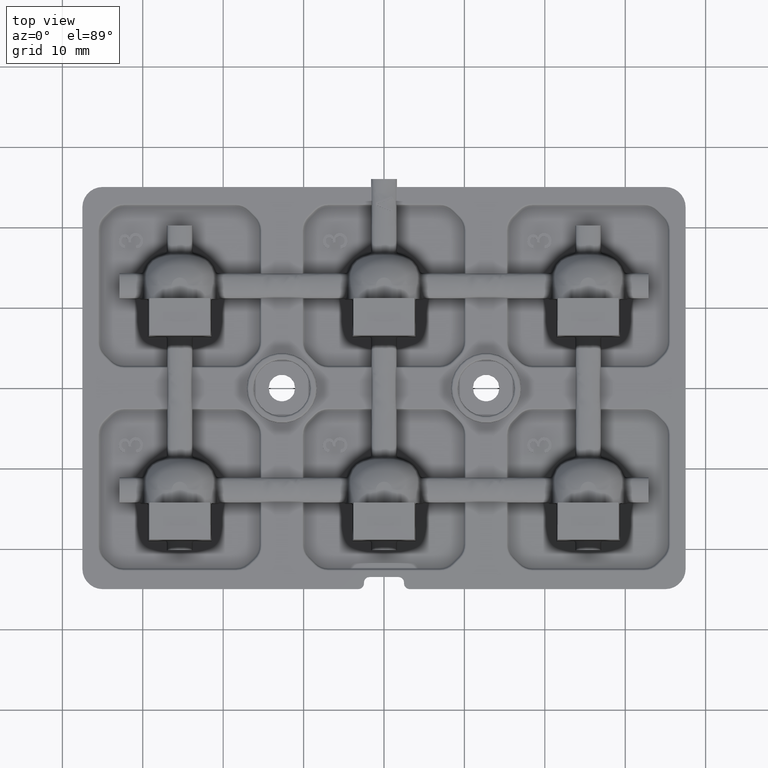
[diagram: clean part render]
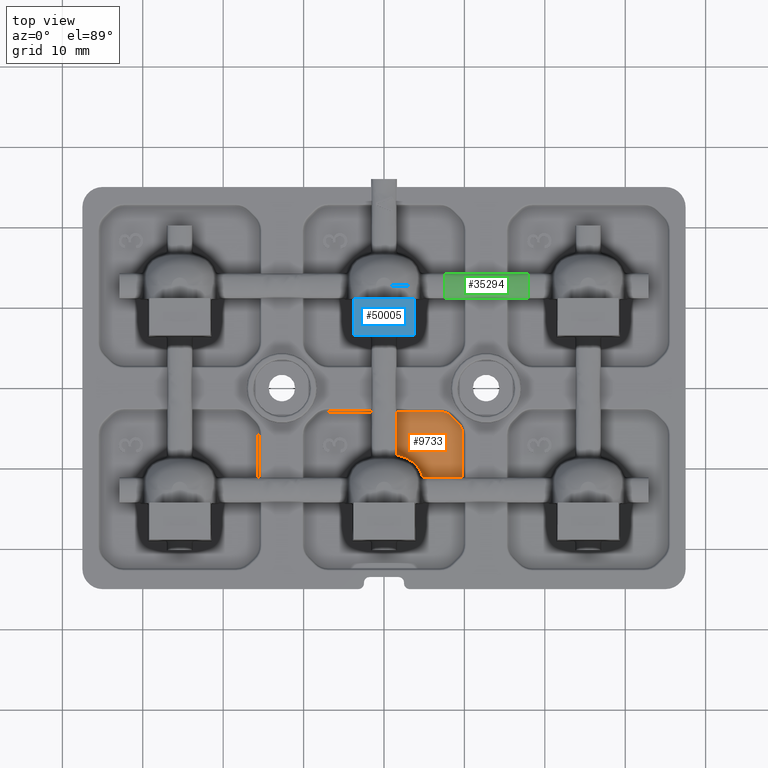
[diagram: same view with three faces highlighted in distinct colors, each labeled with its STEP entity id]
A machine part, top view with three faces highlighted in distinct colors.
Their STEP definitions:

[orange] entity #9733 — the highlighted planar face has unit normal (-0, 0, 1).
#418 = ORIENTED_EDGE ( 'NONE', *, *, #13431, .T. ) ;
#773 = CARTESIAN_POINT ( 'NONE',  ( 4.817144316120902700, -11.09501360376889200, 1.199999999999999700 ) ) ;
#3016 = DIRECTION ( 'NONE',  ( -0.0000000000000000000, 1.000000000000000000, -0.0000000000000000000 ) ) ;
#3584 = AXIS2_PLACEMENT_3D ( 'NONE', #42516, #46503, #22809 ) ;
#3706 = ORIENTED_EDGE ( 'NONE', *, *, #8891, .T. ) ;
#5447 = VERTEX_POINT ( 'NONE', #7114 ) ;
#5718 = DIRECTION ( 'NONE',  ( -0.7071067811865471300, 0.7071067811865479100, -0.0000000000000000000 ) ) ;
#6539 = AXIS2_PLACEMENT_3D ( 'NONE', #44380, #20689, #48365 ) ;
#6844 = PLANE ( 'NONE',  #3584 ) ;
#7046 = CARTESIAN_POINT ( 'NONE',  ( 8.389356138946475000, -3.507343002154405600, 1.200000000000000000 ) ) ;
#7114 = CARTESIAN_POINT ( 'NONE',  ( 9.790225092205679000, -5.753300858899104100, 1.200000000000000000 ) ) ;
#7181 = CARTESIAN_POINT ( 'NONE',  ( 1.971997462998333700, -8.407020573670386900, 1.199999999999999300 ) ) ;
#8561 = CARTESIAN_POINT ( 'NONE',  ( 2.328339350332937500, -8.513810175056194800, 1.199999999999993700 ) ) ;
#8891 = EDGE_CURVE ( 'NONE', #20057, #42970, #26353, .T. ) ;
#9538 = VECTOR ( 'NONE', #24849, 1000.000000000000000 ) ;
#9730 = ORIENTED_EDGE ( 'NONE', *, *, #18635, .T. ) ;
#9733 = ADVANCED_FACE ( 'NONE', ( #25062 ), #6844, .T. ) ;
#10731 = ORIENTED_EDGE ( 'NONE', *, *, #23779, .T. ) ;
#12435 = VECTOR ( 'NONE', #17568, 1000.000000000000000 ) ;
#12559 = CARTESIAN_POINT ( 'NONE',  ( 3.009983202670551500, -8.820547010681167400, 1.199999999999987700 ) ) ;
#13431 = EDGE_CURVE ( 'NONE', #19203, #20057, #41633, .T. ) ;
#13670 = LINE ( 'NONE', #37252, #12435 ) ;
#14990 = CARTESIAN_POINT ( 'NONE',  ( 1.604986396231102600, -500012.7000000001300, 1.199999999999999700 ) ) ;
#15922 = VERTEX_POINT ( 'NONE', #24440 ) ;
#16027 = EDGE_CURVE ( 'NONE', #5447, #19203, #22952, .T. ) ;
#16511 = B_SPLINE_CURVE_WITH_KNOTS ( 'NONE', 3,
 ( #35051, #7181, #8561, #36257, #12559, #40232, #16550, #44226, #20532, #48207, #24492, #773 ),
 .UNSPECIFIED., .F., .F.,
 ( 4, 2, 2, 2, 2, 4 ),
 ( 3.598827188588828000E-014, 0.001114931014532037900, 0.001672396521780062600, 0.002229862029028087200, 0.003344793043524133500, 0.004459724058020180700 ),
 .UNSPECIFIED. ) ;
#16550 = CARTESIAN_POINT ( 'NONE',  ( 3.483065159397762800, -9.116675377732239100, 1.200000000000000000 ) ) ;
#16670 = LINE ( 'NONE', #28129, #36466 ) ;
#17568 = DIRECTION ( 'NONE',  ( -1.000000000000000000, -1.376121659673310300E-016, 0.0000000000000000000 ) ) ;
#18246 = CARTESIAN_POINT ( 'NONE',  ( 7.749999999999998200, -5.753300858899102400, 1.200000000000000000 ) ) ;
#18635 = EDGE_CURVE ( 'NONE', #45499, #5447, #16670, .T. ) ;
#19203 = VERTEX_POINT ( 'NONE', #28604 ) ;
#19321 = VERTEX_POINT ( 'NONE', #29279 ) ;
#19376 = VECTOR ( 'NONE', #5718, 1000.000000000000000 ) ;
#19814 = AXIS2_PLACEMENT_3D ( 'NONE', #18246, #45918, #22207 ) ;
#20057 = VERTEX_POINT ( 'NONE', #7046 ) ;
#20235 = ORIENTED_EDGE ( 'NONE', *, *, #16027, .T. ) ;
#20532 = CARTESIAN_POINT ( 'NONE',  ( 4.167186963617148800, -9.752513044889775900, 1.199999999999999700 ) ) ;
#20689 = DIRECTION ( 'NONE',  ( -0.0000000000000000000, 0.0000000000000000000, 1.000000000000000000 ) ) ;
#21314 = VECTOR ( 'NONE', #3016, 1000.000000000000000 ) ;
#22207 = DIRECTION ( 'NONE',  ( 1.000000000000000000, 0.0000000000000000000, 0.0000000000000000000 ) ) ;
#22809 = DIRECTION ( 'NONE',  ( 1.000000000000000000, 0.0000000000000000000, 0.0000000000000000000 ) ) ;
#22952 = CIRCLE ( 'NONE', #19814, 2.040225092205680400 ) ;
#23718 = EDGE_CURVE ( 'NONE', #30395, #15922, #31831, .T. ) ;
#23779 = EDGE_CURVE ( 'NONE', #30395, #19321, #16511, .T. ) ;
#23847 = EDGE_CURVE ( 'NONE', #19321, #45499, #41133, .T. ) ;
#24440 = CARTESIAN_POINT ( 'NONE',  ( 1.604986396231103500, -2.909774907794310000, 1.200000000000000000 ) ) ;
#24492 = CARTESIAN_POINT ( 'NONE',  ( 4.712519485763802000, -10.73401077090946000, 1.199999999999999500 ) ) ;
#24849 = DIRECTION ( 'NONE',  ( 1.000000000000000000, 0.0000000000000000000, 0.0000000000000000000 ) ) ;
#25062 = FACE_OUTER_BOUND ( 'NONE', #40956, .T. ) ;
#25673 = ORIENTED_EDGE ( 'NONE', *, *, #23847, .T. ) ;
#26353 = CIRCLE ( 'NONE', #6539, 2.040225092205680400 ) ;
#26940 = CARTESIAN_POINT ( 'NONE',  ( 6.946699141100890700, -2.909774907794308700, 1.200000000000000000 ) ) ;
#27686 = EDGE_CURVE ( 'NONE', #42970, #15922, #13670, .T. ) ;
#28129 = CARTESIAN_POINT ( 'NONE',  ( 9.790225092205679000, -5.753300858899102400, 1.200000000000000000 ) ) ;
#28604 = CARTESIAN_POINT ( 'NONE',  ( 9.192656997845587000, -4.310643861053520700, 1.200000000000000000 ) ) ;
#29279 = CARTESIAN_POINT ( 'NONE',  ( 4.817144316120902700, -11.09501360376889200, 1.199999999999999700 ) ) ;
#30395 = VERTEX_POINT ( 'NONE', #45550 ) ;
#31702 = ORIENTED_EDGE ( 'NONE', *, *, #23718, .F. ) ;
#31831 = LINE ( 'NONE', #14990, #21314 ) ;
#35051 = CARTESIAN_POINT ( 'NONE',  ( 1.604986396231102600, -8.330888513744589800, 1.199999999999999700 ) ) ;
#36257 = CARTESIAN_POINT ( 'NONE',  ( 2.841424404793777100, -8.735566598245620500, 1.199999999999993700 ) ) ;
#36466 = VECTOR ( 'NONE', #44064, 1000.000000000000000 ) ;
#37252 = CARTESIAN_POINT ( 'NONE',  ( -6.946699141100884500, -2.909774907794311400, 1.200000000000000000 ) ) ;
#40232 = CARTESIAN_POINT ( 'NONE',  ( 3.330615079196350200, -9.011111760175015900, 1.199999999999987700 ) ) ;
#40956 = EDGE_LOOP ( 'NONE', ( #41403, #31702, #10731, #25673, #9730, #20235, #418, #3706 ) ) ;
#41133 = LINE ( 'NONE', #44580, #9538 ) ;
#41403 = ORIENTED_EDGE ( 'NONE', *, *, #27686, .T. ) ;
#41419 = CARTESIAN_POINT ( 'NONE',  ( 2.441006568396038900, 2.441006568396036200, 1.200000000000000000 ) ) ;
#41633 = LINE ( 'NONE', #41419, #19376 ) ;
#42516 = CARTESIAN_POINT ( 'NONE',  ( 0.0000000000000000000, 0.0000000000000000000, 1.200000000000000000 ) ) ;
#42970 = VERTEX_POINT ( 'NONE', #26940 ) ;
#44064 = DIRECTION ( 'NONE',  ( 0.0000000000000000000, 1.000000000000000000, -0.0000000000000000000 ) ) ;
#44226 = CARTESIAN_POINT ( 'NONE',  ( 3.913622186879389000, -9.468386889005595100, 1.200000000000000000 ) ) ;
#44380 = CARTESIAN_POINT ( 'NONE',  ( 6.946699141100887200, -4.949999999999989500, 1.200000000000000000 ) ) ;
#44580 = CARTESIAN_POINT ( 'NONE',  ( -500000.0000000000600, -11.09501360376889200, 1.199999999999999700 ) ) ;
#45499 = VERTEX_POINT ( 'NONE', #47397 ) ;
#45550 = CARTESIAN_POINT ( 'NONE',  ( 1.604986396231102600, -8.330888513744589800, 1.199999999999999700 ) ) ;
#45918 = DIRECTION ( 'NONE',  ( -0.0000000000000000000, 0.0000000000000000000, 1.000000000000000000 ) ) ;
#46503 = DIRECTION ( 'NONE',  ( -0.0000000000000000000, 0.0000000000000000000, 1.000000000000000000 ) ) ;
#47397 = CARTESIAN_POINT ( 'NONE',  ( 9.790225092205679000, -11.09501360376890100, 1.200000000000000000 ) ) ;
#48207 = CARTESIAN_POINT ( 'NONE',  ( 4.568138136016970400, -10.38997800600116200, 1.199999999999999500 ) ) ;
#48365 = DIRECTION ( 'NONE',  ( 1.000000000000000000, 0.0000000000000000000, 0.0000000000000000000 ) ) ;

[blue] entity #50005 — the highlighted face is a freeform B-spline surface patch.
#1172 = CARTESIAN_POINT ( 'NONE',  ( -3.798299379529759700, 11.09999923611837100, 5.271582733034067700 ) ) ;
#1397 = CARTESIAN_POINT ( 'NONE',  ( 3.798297222392027300, 11.09999923118901300, 5.271616364205776500 ) ) ;
#1413 = CARTESIAN_POINT ( 'NONE',  ( -3.798299379529759700, 11.09999923611837100, 5.271582733034067700 ) ) ;
#1739 = CARTESIAN_POINT ( 'NONE',  ( -5.000000000000004400, 8.776319756988229400, 5.279979393257548300 ) ) ;
#1907 = CARTESIAN_POINT ( 'NONE',  ( 0.0000000000000000000, 12.70000000000000300, 5.265690061331874000 ) ) ;
#2054 = CARTESIAN_POINT ( 'NONE',  ( 2.499999999999998700, 6.645097103468815500, 5.212054626918871700 ) ) ;
#2232 = CARTESIAN_POINT ( 'NONE',  ( 7.500000000000000000, 10.63535580559620200, 5.292374259485726800 ) ) ;
#5541 = CARTESIAN_POINT ( 'NONE',  ( -7.500000000000000000, 12.00305055616636800, 5.308531448915694300 ) ) ;
#5709 = CARTESIAN_POINT ( 'NONE',  ( -4.999999999999997300, 6.645795309703013100, 5.267646344363021700 ) ) ;
#5870 = CARTESIAN_POINT ( 'NONE',  ( 0.0000000000000000000, 10.63477515457843700, 5.236782027440267700 ) ) ;
#6044 = CARTESIAN_POINT ( 'NONE',  ( 2.499999999999998700, 6.100000000000008500, 5.206289929747823600 ) ) ;
#6229 = CARTESIAN_POINT ( 'NONE',  ( 7.500000000000000000, 7.499540345586655800, 5.273089690299645600 ) ) ;
#9196 = CARTESIAN_POINT ( 'NONE',  ( 3.798696579638366700, 10.44230125191616700, 5.264575732192416700 ) ) ;
#9228 = CARTESIAN_POINT ( 'NONE',  ( 2.532233098500307600, 11.09999999999999800, 5.257445054913657300 ) ) ;
#9547 = CARTESIAN_POINT ( 'NONE',  ( -7.500000000000000000, 10.63535580559620200, 5.292374259485726800 ) ) ;
#9718 = CARTESIAN_POINT ( 'NONE',  ( -4.999999999999997300, 6.100241593466698500, 5.261885535654487400 ) ) ;
#9909 = CARTESIAN_POINT ( 'NONE',  ( 0.0000000000000000000, 7.498839191259778900, 5.217497808111596100 ) ) ;
#10072 = CARTESIAN_POINT ( 'NONE',  ( 5.000000000000000900, 12.00296713588693000, 5.308529922256541400 ) ) ;
#10241 = CARTESIAN_POINT ( 'NONE',  ( 7.500000000000000000, 6.300754634618349400, 5.264683525949293700 ) ) ;
#10990 = CARTESIAN_POINT ( 'NONE',  ( 2.533084005487380900, 6.495961292790053000, 5.224903138604226200 ) ) ;
#12215 = VERTEX_POINT ( 'NONE', #1397 ) ;
#13185 = CARTESIAN_POINT ( 'NONE',  ( 3.798870487058220400, 9.784581503780778200, 5.259595675269759200 ) ) ;
#13531 = CARTESIAN_POINT ( 'NONE',  ( -7.500000000000000000, 7.499540345586655800, 5.273089690299645600 ) ) ;
#13698 = CARTESIAN_POINT ( 'NONE',  ( -2.500000000000002200, 12.00288371560749600, 5.252932264764999600 ) ) ;
#13857 = CARTESIAN_POINT ( 'NONE',  ( 0.0000000000000000000, 6.300394141860669700, 5.209086260903348800 ) ) ;
#14041 = CARTESIAN_POINT ( 'NONE',  ( 5.000000000000000900, 8.776319756988229400, 5.279979393257548300 ) ) ;
#14538 = CARTESIAN_POINT ( 'NONE',  ( 3.799576159185587400, 6.496402180999172800, 5.238879226568168500 ) ) ;
#15272 = ORIENTED_EDGE ( 'NONE', *, *, #22593, .T. ) ;
#17201 = CARTESIAN_POINT ( 'NONE',  ( 3.799221129514077400, 8.250042250991690200, 5.249554589092084300 ) ) ;
#17549 = CARTESIAN_POINT ( 'NONE',  ( -7.500000000000000000, 6.300754634618349400, 5.264683525949293700 ) ) ;
#17709 = CARTESIAN_POINT ( 'NONE',  ( -2.500000000000002200, 8.775621796908918500, 5.224387673731363300 ) ) ;
#17843 = VERTEX_POINT ( 'NONE', #1172 ) ;
#17894 = CARTESIAN_POINT ( 'NONE',  ( 2.499999999999998700, 12.70000000000000300, 5.265690061331874000 ) ) ;
#18063 = CARTESIAN_POINT ( 'NONE',  ( 4.999999999999997300, 6.645795309703013100, 5.267646344363018200 ) ) ;
#18105 = CARTESIAN_POINT ( 'NONE',  ( -3.798696579740567600, 10.44230090094728200, 5.264575729265653900 ) ) ;
#18274 = CARTESIAN_POINT ( 'NONE',  ( -3.799020776639398600, 9.126859491666930800, 5.255291944757434700 ) ) ;
#18972 = CARTESIAN_POINT ( 'NONE',  ( -1.266597861741478400, 6.495511107650319400, 5.210631544552204500 ) ) ;
#19441 = VERTEX_POINT ( 'NONE', #14538 ) ;
#20053 = CARTESIAN_POINT ( 'NONE',  ( -3.799579463126978600, 6.496402379792098900, 5.238885942064935200 ) ) ;
#20641 = B_SPLINE_CURVE_WITH_KNOTS ( 'NONE', 3,
 ( #38655, #10990, #42666, #18972, #46640, #22967 ),
 .UNSPECIFIED., .F., .F.,
 ( 4, 2, 4 ),
 ( 0.0000000000000000000, 0.003799682599785023300, 0.007599365199570046500 ),
 .UNSPECIFIED. ) ;
#20777 = FACE_OUTER_BOUND ( 'NONE', #33860, .T. ) ;
#21157 = CARTESIAN_POINT ( 'NONE',  ( 3.799576159185587400, 6.496402180999172800, 5.238879226568168500 ) ) ;
#21184 = CARTESIAN_POINT ( 'NONE',  ( 1.266169233474997700, 11.10000000000000300, 5.243186635473025900 ) ) ;
#21494 = CARTESIAN_POINT ( 'NONE',  ( -4.999999999999997300, 12.70000000000000300, 5.321286192164265600 ) ) ;
#21676 = CARTESIAN_POINT ( 'NONE',  ( -2.500000000000002200, 6.645097103468815500, 5.212054626918871700 ) ) ;
#21843 = CARTESIAN_POINT ( 'NONE',  ( 2.499999999999998700, 10.63477515457843700, 5.236782027440267700 ) ) ;
#22014 = CARTESIAN_POINT ( 'NONE',  ( 5.000000000000000900, 6.100241593466698500, 5.261885535654490000 ) ) ;
#22054 = CARTESIAN_POINT ( 'NONE',  ( -3.798299379529759700, 11.09999923611837100, 5.271582733034067700 ) ) ;
#22238 = CARTESIAN_POINT ( 'NONE',  ( -3.799332492628035900, 7.373206632084285100, 5.246365566754303900 ) ) ;
#22593 = EDGE_CURVE ( 'NONE', #12215, #17843, #30176, .T. ) ;
#22880 = ORIENTED_EDGE ( 'NONE', *, *, #36637, .F. ) ;
#22967 = CARTESIAN_POINT ( 'NONE',  ( -3.799579463126978600, 6.496402379792098900, 5.238885942064935200 ) ) ;
#24066 = ORIENTED_EDGE ( 'NONE', *, *, #41883, .F. ) ;
#25138 = CARTESIAN_POINT ( 'NONE',  ( -2.532234899398210900, 11.10000000000000300, 5.257445075105475300 ) ) ;
#25466 = CARTESIAN_POINT ( 'NONE',  ( -4.999999999999997300, 10.63539402698068800, 5.292374965173558500 ) ) ;
#25629 = CARTESIAN_POINT ( 'NONE',  ( -2.500000000000002200, 6.100000000000008500, 5.206289929747823600 ) ) ;
#25802 = CARTESIAN_POINT ( 'NONE',  ( 2.499999999999998700, 7.498839191259778900, 5.217497808111596100 ) ) ;
#25972 = CARTESIAN_POINT ( 'NONE',  ( 7.500000000000000000, 12.00305055616636800, 5.308531448915694300 ) ) ;
#29196 = B_SPLINE_CURVE_WITH_KNOTS ( 'NONE', 3,
 ( #22054, #18105, #41966, #18274, #45945, #22238, #49882 ),
 .UNSPECIFIED., .F., .F.,
 ( 4, 3, 4 ),
 ( 6.505213034913026600E-019, 0.001973207275932683200, 0.004603712259375275900 ),
 .UNSPECIFIED. ) ;
#29292 = CARTESIAN_POINT ( 'NONE',  ( -7.500000000000000000, 12.70000000000000300, 5.321286192164265600 ) ) ;
#29460 = CARTESIAN_POINT ( 'NONE',  ( -4.999999999999997300, 7.499534124580927500, 5.273089607870769400 ) ) ;
#29635 = CARTESIAN_POINT ( 'NONE',  ( 0.0000000000000000000, 12.00288371560749600, 5.252932264764999600 ) ) ;
#29802 = CARTESIAN_POINT ( 'NONE',  ( 2.499999999999998700, 6.300394141860669700, 5.209086260903348800 ) ) ;
#29976 = CARTESIAN_POINT ( 'NONE',  ( 7.500000000000000000, 8.776320962397152300, 5.279979432603769700 ) ) ;
#30176 = B_SPLINE_CURVE_WITH_KNOTS ( 'NONE', 3,
 ( #48689, #9228, #21184, #48857, #25138, #1413 ),
 .UNSPECIFIED., .F., .F.,
 ( 4, 2, 4 ),
 ( 2.602085213965210600E-018, 0.003798404898527590900, 0.007596809797055179200 ),
 .UNSPECIFIED. ) ;
#30906 = ORIENTED_EDGE ( 'NONE', *, *, #43122, .T. ) ;
#33438 = CARTESIAN_POINT ( 'NONE',  ( -4.999999999999997300, 6.300695184972855000, 5.264682696379654900 ) ) ;
#33595 = CARTESIAN_POINT ( 'NONE',  ( 0.0000000000000000000, 8.775621796908918500, 5.224387673731363300 ) ) ;
#33771 = CARTESIAN_POINT ( 'NONE',  ( 5.000000000000000900, 12.70000000000000300, 5.321286192164265600 ) ) ;
#33860 = EDGE_LOOP ( 'NONE', ( #15272, #30906, #24066, #22880 ) ) ;
#33942 = CARTESIAN_POINT ( 'NONE',  ( 7.500000000000000000, 6.645768053853307000, 5.267645965282067500 ) ) ;
#36637 = EDGE_CURVE ( 'NONE', #12215, #19441, #36851, .T. ) ;
#36851 = B_SPLINE_CURVE_WITH_KNOTS ( 'NONE', 3,
 ( #36882, #9196, #13185, #40887, #17201, #44868, #21157 ),
 .UNSPECIFIED., .F., .F.,
 ( 4, 3, 4 ),
 ( 4.336808689942017700E-019, 0.001973207275934851600, 0.004603712864690814900 ),
 .UNSPECIFIED. ) ;
#36882 = CARTESIAN_POINT ( 'NONE',  ( 3.798297222392027300, 11.09999923118901300, 5.271616364205776500 ) ) ;
#37231 = CARTESIAN_POINT ( 'NONE',  ( -7.500000000000000000, 8.776320962397152300, 5.279979432603766100 ) ) ;
#37399 = CARTESIAN_POINT ( 'NONE',  ( -2.500000000000002200, 12.70000000000000300, 5.265690061331874000 ) ) ;
#37574 = CARTESIAN_POINT ( 'NONE',  ( 0.0000000000000000000, 6.645097103468815500, 5.212054626918871700 ) ) ;
#37759 = CARTESIAN_POINT ( 'NONE',  ( 5.000000000000000900, 10.63539402698068800, 5.292374965173558500 ) ) ;
#37926 = CARTESIAN_POINT ( 'NONE',  ( 7.500000000000000000, 6.100241593466698500, 5.261885535654490000 ) ) ;
#38655 = CARTESIAN_POINT ( 'NONE',  ( 3.799576159185587400, 6.496402180999172800, 5.238879226568168500 ) ) ;
#40887 = CARTESIAN_POINT ( 'NONE',  ( 3.799020776559199200, 9.126859842637738800, 5.255291947053971800 ) ) ;
#41228 = CARTESIAN_POINT ( 'NONE',  ( -7.500000000000000000, 6.645768053853307000, 5.267645965282067500 ) ) ;
#41406 = CARTESIAN_POINT ( 'NONE',  ( -2.500000000000002200, 10.63477515457843700, 5.236782027440267700 ) ) ;
#41581 = CARTESIAN_POINT ( 'NONE',  ( 0.0000000000000000000, 6.100000000000008500, 5.206289929747823600 ) ) ;
#41748 = CARTESIAN_POINT ( 'NONE',  ( 5.000000000000000900, 7.499534124580927500, 5.273089607870769400 ) ) ;
#41883 = EDGE_CURVE ( 'NONE', #19441, #45510, #20641, .T. ) ;
#41966 = CARTESIAN_POINT ( 'NONE',  ( -3.798870487148385200, 9.784581152811116000, 5.259595672687853900 ) ) ;
#42666 = CARTESIAN_POINT ( 'NONE',  ( 1.266594412421615500, 6.495511106832924300, 5.210631518639420500 ) ) ;
#43122 = EDGE_CURVE ( 'NONE', #17843, #45510, #29196, .T. ) ;
#44868 = CARTESIAN_POINT ( 'NONE',  ( 3.799332492572528300, 7.373206579503190000, 5.246365568343786200 ) ) ;
#45226 = CARTESIAN_POINT ( 'NONE',  ( -7.500000000000000000, 6.100241593466698500, 5.261885535654487400 ) ) ;
#45385 = CARTESIAN_POINT ( 'NONE',  ( -2.500000000000002200, 7.498839191259778900, 5.217497808111596100 ) ) ;
#45510 = VERTEX_POINT ( 'NONE', #20053 ) ;
#45549 = CARTESIAN_POINT ( 'NONE',  ( 2.499999999999998700, 12.00288371560749600, 5.252932264764999600 ) ) ;
#45731 = CARTESIAN_POINT ( 'NONE',  ( 5.000000000000000900, 6.300695184972855000, 5.264682696379654900 ) ) ;
#45945 = CARTESIAN_POINT ( 'NONE',  ( -3.799221129534889200, 8.250042101785824800, 5.249554588496208900 ) ) ;
#46640 = CARTESIAN_POINT ( 'NONE',  ( -2.533087401639622100, 6.495961293991827600, 5.224903176701732700 ) ) ;
#48689 = CARTESIAN_POINT ( 'NONE',  ( 3.798297222392027300, 11.09999923118901300, 5.271616364205776500 ) ) ;
#48857 = CARTESIAN_POINT ( 'NONE',  ( -1.266171087307482500, 11.09999999999999800, 5.243186649391613900 ) ) ;
#49153 = CARTESIAN_POINT ( 'NONE',  ( -4.999999999999997300, 12.00296713588693000, 5.308529922256541400 ) ) ;
#49331 = CARTESIAN_POINT ( 'NONE',  ( -2.500000000000002200, 6.300394141860669700, 5.209086260903348800 ) ) ;
#49475 = B_SPLINE_SURFACE_WITH_KNOTS ( 'NONE', 3, 3, ( 
 ( #29292, #5541, #9547, #37231, #13531, #41228, #17549, #45226 ),
 ( #21494, #49153, #25466, #1739, #29460, #5709, #33438, #9718 ),
 ( #37399, #13698, #41406, #17709, #45385, #21676, #49331, #25629 ),
 ( #1907, #29635, #5870, #33595, #9909, #37574, #13857, #41581 ),
 ( #17894, #45549, #21843, #49515, #25802, #2054, #29802, #6044 ),
 ( #33771, #10072, #37759, #14041, #41748, #18063, #45731, #22014 ),
 ( #49680, #25972, #2232, #29976, #6229, #33942, #10241, #37926 ) ),
 .UNSPECIFIED., .F., .F., .F.,
 ( 4, 3, 4 ),
 ( 4, 1, 1, 1, 1, 4 ),
 ( 0.0000000000000000000, 0.5000000000000000000, 1.000000000000000000 ),
 ( 0.0000000000000000000, 0.2800000000000000300, 0.5599999999999999400, 0.7066666666666666700, 0.8533333333333330600, 1.000000000000000000 ),
 .UNSPECIFIED. ) ;
#49515 = CARTESIAN_POINT ( 'NONE',  ( 2.500000000000002200, 8.775621796908918500, 5.224387673731363300 ) ) ;
#49680 = CARTESIAN_POINT ( 'NONE',  ( 7.500000000000000000, 12.70000000000000300, 5.321286192164265600 ) ) ;
#49882 = CARTESIAN_POINT ( 'NONE',  ( -3.799579463126978600, 6.496402379792098900, 5.238885942064935200 ) ) ;
#50005 = ADVANCED_FACE ( 'NONE', ( #20777 ), #49475, .F. ) ;

[green] entity #35294 — the highlighted face is a freeform B-spline surface patch.
#1185 = VECTOR ( 'NONE', #36483, 1000.000000000000000 ) ;
#2033 = CARTESIAN_POINT ( 'NONE',  ( 7.499999999879492800, 11.32114947232341300, 2.143950550859377500 ) ) ;
#2132 = EDGE_CURVE ( 'NONE', #21790, #46838, #44765, .T. ) ;
#2249 = CARTESIAN_POINT ( 'NONE',  ( 17.90000000006366300, 11.14860344225511400, 1.499999999999998900 ) ) ;
#4010 = ORIENTED_EDGE ( 'NONE', *, *, #49113, .F. ) ;
#5769 = ORIENTED_EDGE ( 'NONE', *, *, #2132, .F. ) ;
#5788 = CARTESIAN_POINT ( 'NONE',  ( 17.90000000006366300, 14.25139655774487000, 1.500000000000000200 ) ) ;
#6269 = CARTESIAN_POINT ( 'NONE',  ( 18.19999999999999900, 14.25139655774487000, 1.500000000000000200 ) ) ;
#6627 = ORIENTED_EDGE ( 'NONE', *, *, #43118, .T. ) ;
#7322 = CARTESIAN_POINT ( 'NONE',  ( 7.499999999993178800, 14.25139655774487000, 1.500000000000000200 ) ) ;
#8298 = VERTEX_POINT ( 'NONE', #12661 ) ;
#8477 = CARTESIAN_POINT ( 'NONE',  ( 10.24848266170126400, 14.25139655774487000, 1.499999999999999800 ) ) ;
#8644 = CARTESIAN_POINT ( 'NONE',  ( 15.15151733829870800, 11.14860344225511400, 1.499999999999999800 ) ) ;
#8967 = LINE ( 'NONE', #6269, #21994 ) ;
#9341 = EDGE_CURVE ( 'NONE', #41578, #25969, #40701, .T. ) ;
#12661 = CARTESIAN_POINT ( 'NONE',  ( 17.90000000006366300, 11.14860344225511400, 1.499999999999999800 ) ) ;
#12701 = ORIENTED_EDGE ( 'NONE', *, *, #35451, .T. ) ;
#14009 = CARTESIAN_POINT ( 'NONE',  ( 7.499999999993178800, 14.25139655774487000, 1.500000000000000200 ) ) ;
#15097 = CARTESIAN_POINT ( 'NONE',  ( 17.90000000012051000, 11.32114947232340900, 2.143950550859373900 ) ) ;
#15920 = CARTESIAN_POINT ( 'NONE',  ( 18.19999999999999900, 11.14860344225511400, 1.499999999999999800 ) ) ;
#15941 = CARTESIAN_POINT ( 'NONE',  ( 15.15151733829871000, 14.25139655774487000, 1.499999999999999800 ) ) ;
#16145 = CARTESIAN_POINT ( 'NONE',  ( 18.19999999999999900, 11.14860344225511400, 1.499999999999999800 ) ) ;
#16478 = EDGE_CURVE ( 'NONE', #22942, #25969, #31544, .T. ) ;
#18482 = DIRECTION ( 'NONE',  ( -1.000000000000000000, -0.0000000000000000000, -0.0000000000000000000 ) ) ;
#19084 = EDGE_CURVE ( 'NONE', #46838, #41578, #26521, .T. ) ;
#19111 = CARTESIAN_POINT ( 'NONE',  ( 17.90000000012051000, 14.07885052767652700, 2.143950550859392600 ) ) ;
#19312 = LINE ( 'NONE', #46155, #45904 ) ;
#19353 = CARTESIAN_POINT ( 'NONE',  ( 10.24848266170126400, 11.14860344225511400, 1.499999999999999800 ) ) ;
#20129 = DIRECTION ( 'NONE',  ( -1.000000000000000000, -0.0000000000000000000, -0.0000000000000000000 ) ) ;
#20308 = CARTESIAN_POINT ( 'NONE',  ( 7.499999999879492000, 11.14860344225511400, 1.499999999999999800 ) ) ;
#21104 = FACE_OUTER_BOUND ( 'NONE', #26014, .T. ) ;
#21790 = VERTEX_POINT ( 'NONE', #8644 ) ;
#21994 = VECTOR ( 'NONE', #30015, 1000.000000000000000 ) ;
#22028 = CARTESIAN_POINT ( 'NONE',  ( 7.499999999879492000, 14.07885052767652000, 2.143950550859375200 ) ) ;
#22942 = VERTEX_POINT ( 'NONE', #8477 ) ;
#24720 = ORIENTED_EDGE ( 'NONE', *, *, #9341, .F. ) ;
#25771 = CARTESIAN_POINT ( 'NONE',  ( 7.499999999879492800, 14.07885052767652700, 2.143950550859392600 ) ) ;
#25924 = ORIENTED_EDGE ( 'NONE', *, *, #16478, .T. ) ;
#25969 = VERTEX_POINT ( 'NONE', #7322 ) ;
#25985 = CARTESIAN_POINT ( 'NONE',  ( 7.499999999879492000, 11.32114947232346400, 2.143950550859374800 ) ) ;
#26014 = EDGE_LOOP ( 'NONE', ( #12701, #49959, #6627, #25924, #24720, #33553, #5769, #4010 ) ) ;
#26521 = LINE ( 'NONE', #16145, #46384 ) ;
#27678 = DIRECTION ( 'NONE',  ( -1.000000000000000000, -0.0000000000000000000, -0.0000000000000000000 ) ) ;
#28522 = VERTEX_POINT ( 'NONE', #5788 ) ;
#29820 = CARTESIAN_POINT ( 'NONE',  ( 7.499999999879492000, 14.25139655774487000, 1.499999999999998200 ) ) ;
#29989 = CARTESIAN_POINT ( 'NONE',  ( 7.499999999879492000, 11.14860344225511400, 1.499999999999998900 ) ) ;
#30015 = DIRECTION ( 'NONE',  ( -1.000000000000000000, -0.0000000000000000000, -0.0000000000000000000 ) ) ;
#30114 = LINE ( 'NONE', #15920, #39387 ) ;
#31544 = LINE ( 'NONE', #32495, #1185 ) ;
#32495 = CARTESIAN_POINT ( 'NONE',  ( 18.19999999999999900, 14.25139655774487000, 1.500000000000000200 ) ) ;
#33553 = ORIENTED_EDGE ( 'NONE', *, *, #19084, .F. ) ;
#34387 = DIRECTION ( 'NONE',  ( -1.000000000000000000, -0.0000000000000000000, -0.0000000000000000000 ) ) ;
#35294 = ADVANCED_FACE ( 'NONE', ( #21104 ), #38577, .F. ) ;
#35451 = EDGE_CURVE ( 'NONE', #8298, #28522, #46926, .T. ) ;
#35567 = VERTEX_POINT ( 'NONE', #15941 ) ;
#36483 = DIRECTION ( 'NONE',  ( -1.000000000000000000, -0.0000000000000000000, -0.0000000000000000000 ) ) ;
#36703 = VECTOR ( 'NONE', #34387, 1000.000000000000000 ) ;
#37724 = CARTESIAN_POINT ( 'NONE',  ( 7.499999999879492000, 11.14860344225511400, 1.499999999999999800 ) ) ;
#38577 = B_SPLINE_SURFACE_WITH_KNOTS ( 'NONE', 3, 1, ( 
 ( #41761, #29820 ),
 ( #45746, #22028 ),
 ( #49693, #25985 ),
 ( #2249, #29989 ) ),
 .UNSPECIFIED., .F., .F., .F.,
 ( 4, 4 ),
 ( 2, 2 ),
 ( 0.0000000000000000000, 1.000000000000000000 ),
 ( 0.0000000000000000000, 1.000000000000000000 ),
 .UNSPECIFIED. ) ;
#38799 = CARTESIAN_POINT ( 'NONE',  ( 17.90000000006366300, 11.14860344225511400, 1.499999999999999800 ) ) ;
#39387 = VECTOR ( 'NONE', #27678, 1000.000000000000000 ) ;
#40701 = B_SPLINE_CURVE_WITH_KNOTS ( 'NONE', 3,
 ( #37724, #2033, #25771, #14009 ),
 .UNSPECIFIED., .F., .F.,
 ( 4, 4 ),
 ( -2.345519611868240900E-014, 1.000000000000000000 ),
 .UNSPECIFIED. ) ;
#41578 = VERTEX_POINT ( 'NONE', #20308 ) ;
#41761 = CARTESIAN_POINT ( 'NONE',  ( 17.90000000006366300, 14.25139655774487000, 1.499999999999998200 ) ) ;
#42199 = CARTESIAN_POINT ( 'NONE',  ( 18.19999999999999900, 11.14860344225511400, 1.499999999999999800 ) ) ;
#43118 = EDGE_CURVE ( 'NONE', #35567, #22942, #8967, .T. ) ;
#43920 = EDGE_CURVE ( 'NONE', #28522, #35567, #19312, .T. ) ;
#44765 = LINE ( 'NONE', #42199, #36703 ) ;
#45746 = CARTESIAN_POINT ( 'NONE',  ( 17.90000000006366300, 14.07885052767652000, 2.143950550859375200 ) ) ;
#45904 = VECTOR ( 'NONE', #18482, 1000.000000000000000 ) ;
#46155 = CARTESIAN_POINT ( 'NONE',  ( 18.19999999999999900, 14.25139655774487000, 1.500000000000000200 ) ) ;
#46384 = VECTOR ( 'NONE', #20129, 1000.000000000000000 ) ;
#46774 = CARTESIAN_POINT ( 'NONE',  ( 17.90000000006366300, 14.25139655774487000, 1.500000000000000200 ) ) ;
#46838 = VERTEX_POINT ( 'NONE', #19353 ) ;
#46926 = B_SPLINE_CURVE_WITH_KNOTS ( 'NONE', 3,
 ( #38799, #15097, #19111, #46774 ),
 .UNSPECIFIED., .F., .F.,
 ( 4, 4 ),
 ( -2.367897544708341700E-014, 1.000000000000000000 ),
 .UNSPECIFIED. ) ;
#49113 = EDGE_CURVE ( 'NONE', #8298, #21790, #30114, .T. ) ;
#49693 = CARTESIAN_POINT ( 'NONE',  ( 17.90000000006366300, 11.32114947232346400, 2.143950550859374800 ) ) ;
#49959 = ORIENTED_EDGE ( 'NONE', *, *, #43920, .T. ) ;